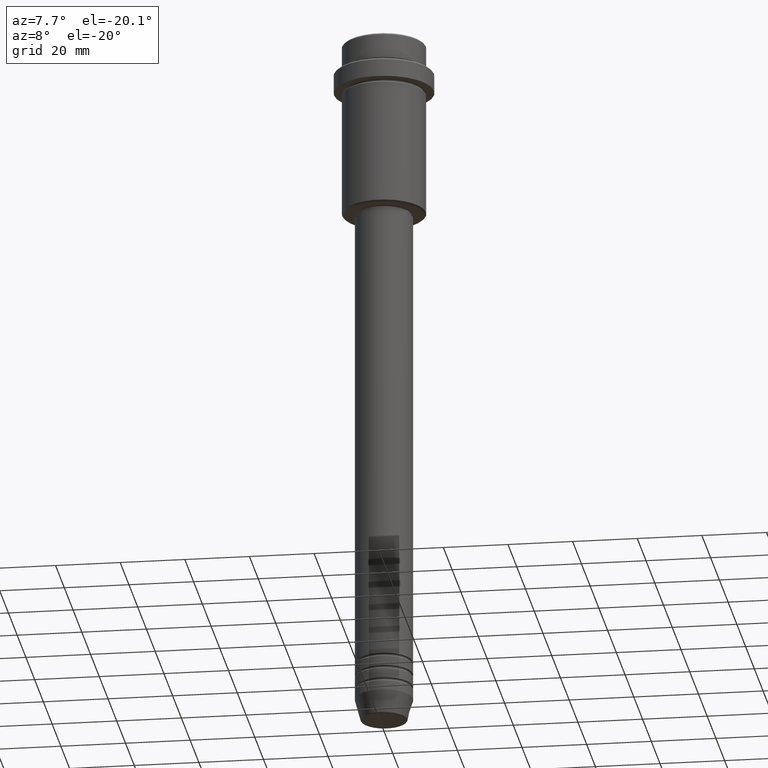
[diagram: clean part render]
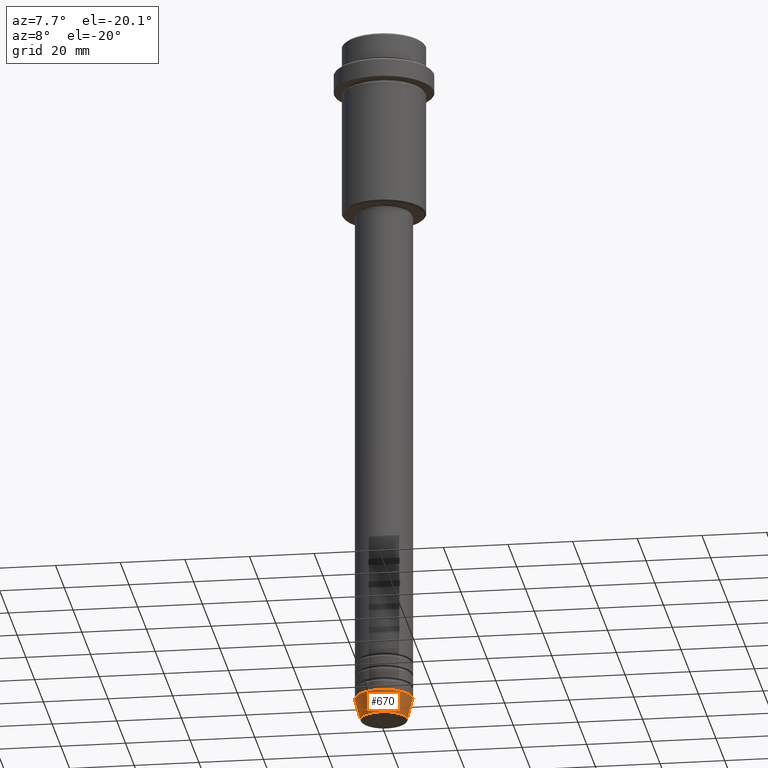
[diagram: same view with one face highlighted and labeled with its STEP entity id]
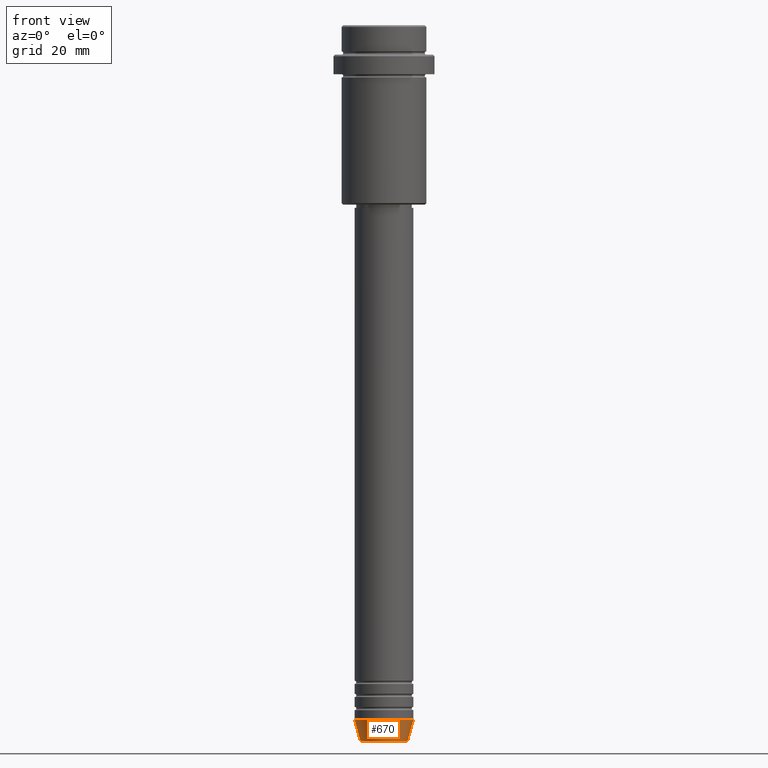
[diagram: same view with one face highlighted and labeled with its STEP entity id]
A machine part, auxiliary view. The second image highlights one B-rep face of the part: STEP entity #670.
A second angle (front view) of the same face is appended — the face is thin or edge-on in the first view.
In plain terms, the highlighted conical surface has half-angle 15 deg.
Its self-contained STEP definition (entity closure, byte-faithful):
#70 = VECTOR ( 'NONE', #244, 1000.000000000000000 ) ;
#92 = CARTESIAN_POINT ( 'NONE',  ( -9.000000000000000000, 1.102182119232617714E-15, -213.0000000000000284 ) ) ;
#159 = VERTEX_POINT ( 'NONE', #1278 ) ;
#179 = DIRECTION ( 'NONE',  ( 1.000000000000000000, 0.000000000000000000, 0.000000000000000000 ) ) ;
#224 = EDGE_LOOP ( 'NONE', ( #656, #553, #1184, #1349 ) ) ;
#232 = DIRECTION ( 'NONE',  ( 1.000000000000000000, 0.000000000000000000, 0.000000000000000000 ) ) ;
#244 = DIRECTION ( 'NONE',  ( 0.2588190451025213501, 0.000000000000000000, 0.9659258262890680902 ) ) ;
#318 = CARTESIAN_POINT ( 'NONE',  ( 7.223655072137188604, 0.000000000000000000, -219.6294095225512990 ) ) ;
#337 = VERTEX_POINT ( 'NONE', #318 ) ;
#339 = CIRCLE ( 'NONE', #1264, 7.223655072137188604 ) ;
#398 = FACE_OUTER_BOUND ( 'NONE', #224, .T. ) ;
#478 = CARTESIAN_POINT ( 'NONE',  ( 9.000000000000000000, 0.000000000000000000, -213.0000000000000284 ) ) ;
#490 = CARTESIAN_POINT ( 'NONE',  ( 0.000000000000000000, 0.000000000000000000, -213.0000000000000284 ) ) ;
#503 = EDGE_CURVE ( 'NONE', #1351, #1307, #1386, .T. ) ;
#527 = LINE ( 'NONE', #92, #1240 ) ;
#553 = ORIENTED_EDGE ( 'NONE', *, *, #859, .T. ) ;
#556 = EDGE_CURVE ( 'NONE', #337, #1307, #584, .T. ) ;
#584 = LINE ( 'NONE', #1022, #70 ) ;
#593 = EDGE_CURVE ( 'NONE', #159, #1351, #527, .T. ) ;
#656 = ORIENTED_EDGE ( 'NONE', *, *, #593, .F. ) ;
#670 = ADVANCED_FACE ( 'NONE', ( #398 ), #940, .T. ) ;
#738 = CARTESIAN_POINT ( 'NONE',  ( -9.000000000000000000, 1.102182119232617714E-15, -213.0000000000000284 ) ) ;
#834 = CARTESIAN_POINT ( 'NONE',  ( 0.000000000000000000, 0.000000000000000000, -219.6294095225512990 ) ) ;
#859 = EDGE_CURVE ( 'NONE', #159, #337, #339, .T. ) ;
#867 = CARTESIAN_POINT ( 'NONE',  ( 0.000000000000000000, 0.000000000000000000, -213.0000000000000284 ) ) ;
#940 = CONICAL_SURFACE ( 'NONE', #1327, 9.000000000000000000, 0.2617993877991500740 ) ;
#953 = DIRECTION ( 'NONE',  ( -0.000000000000000000, -0.000000000000000000, 1.000000000000000000 ) ) ;
#958 = AXIS2_PLACEMENT_3D ( 'NONE', #490, #953, #232 ) ;
#1022 = CARTESIAN_POINT ( 'NONE',  ( 9.000000000000000000, 0.000000000000000000, -213.0000000000000284 ) ) ;
#1179 = DIRECTION ( 'NONE',  ( -0.2588190451025213501, 3.169619151431772337E-17, 0.9659258262890680902 ) ) ;
#1184 = ORIENTED_EDGE ( 'NONE', *, *, #556, .T. ) ;
#1240 = VECTOR ( 'NONE', #1179, 1000.000000000000000 ) ;
#1252 = DIRECTION ( 'NONE',  ( 1.000000000000000000, 0.000000000000000000, 0.000000000000000000 ) ) ;
#1264 = AXIS2_PLACEMENT_3D ( 'NONE', #834, #1377, #1252 ) ;
#1278 = CARTESIAN_POINT ( 'NONE',  ( -7.223655072137189492, 9.934123627281765110E-16, -219.6294095225512990 ) ) ;
#1307 = VERTEX_POINT ( 'NONE', #478 ) ;
#1327 = AXIS2_PLACEMENT_3D ( 'NONE', #867, #1384, #179 ) ;
#1349 = ORIENTED_EDGE ( 'NONE', *, *, #503, .F. ) ;
#1351 = VERTEX_POINT ( 'NONE', #738 ) ;
#1377 = DIRECTION ( 'NONE',  ( -0.000000000000000000, -0.000000000000000000, 1.000000000000000000 ) ) ;
#1384 = DIRECTION ( 'NONE',  ( -0.000000000000000000, -0.000000000000000000, 1.000000000000000000 ) ) ;
#1386 = CIRCLE ( 'NONE', #958, 9.000000000000000000 ) ;